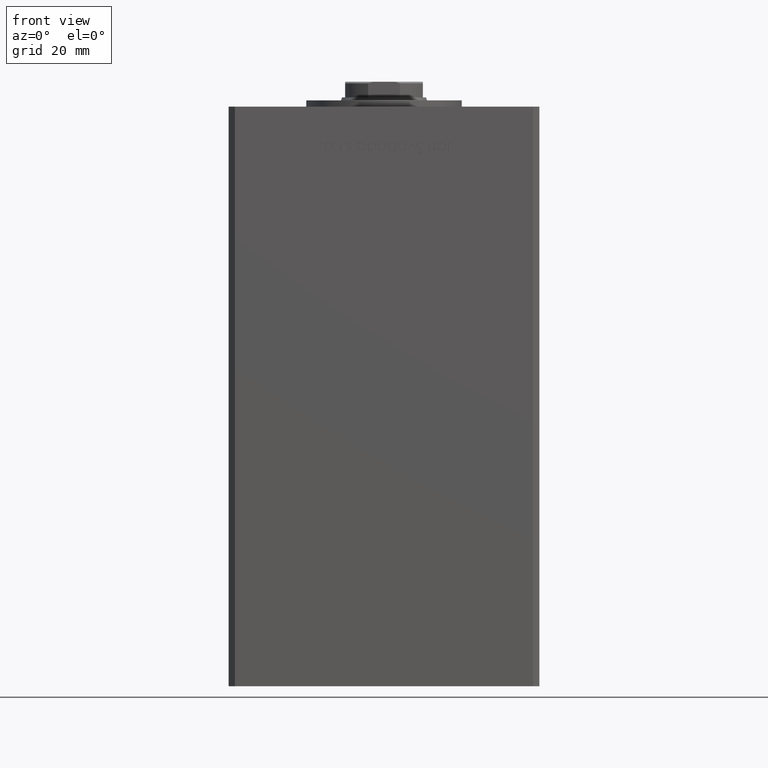
[diagram: clean part render]
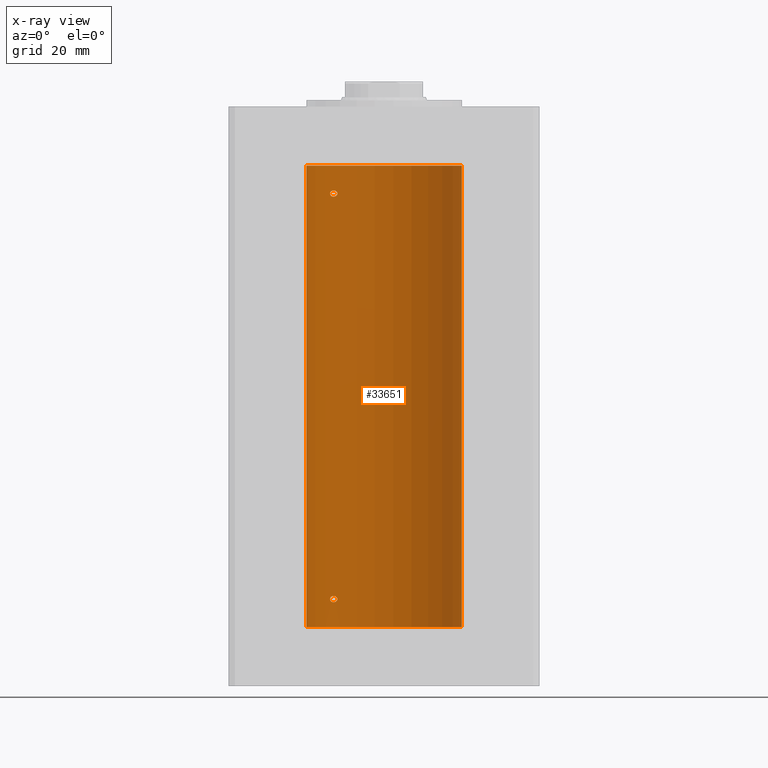
[diagram: x-ray — body ghosted, one internal face saturated and labeled with its STEP entity id]
A machine part, front view, then the same camera in x-ray: the body is ghosted and one INTERNAL B-rep face — a face not visible from any outside direction — is saturated and labeled: STEP entity #33651.
In plain terms, the highlighted cylindrical surface (partial cylindrical patch) has radius 25 mm, axis along (-0, -0, -1).
Its self-contained STEP definition (entity closure, byte-faithful):
#184 = ORIENTED_EDGE ( 'NONE', *, *, #7863, .T. ) ;
#331 = CARTESIAN_POINT ( 'NONE',  ( -15.06763582406798818, 19.94912143246363811, 139.8250699387717475 ) ) ;
#586 = CARTESIAN_POINT ( 'NONE',  ( -16.72476285461317502, 18.58415905903083498, 140.4449447607956927 ) ) ;
#1312 = VECTOR ( 'NONE', #37553, 1000.000000000000000 ) ;
#1379 = CARTESIAN_POINT ( 'NONE',  ( 25.00000000000000000, 3.061616997868383043E-15, 148.5000000000000000 ) ) ;
#1762 = CARTESIAN_POINT ( 'NONE',  ( -15.58164749401199956, 19.55082150006405328, 138.6566780726851675 ) ) ;
#1823 = AXIS2_PLACEMENT_3D ( 'NONE', #33311, #40907, #45357 ) ;
#2150 = CIRCLE ( 'NONE', #3848, 25.00000000000000000 ) ;
#2289 = CARTESIAN_POINT ( 'NONE',  ( -15.23538646979298505, 19.82157806413532697, 138.9119998952827757 ) ) ;
#2467 = DIRECTION ( 'NONE',  ( 1.000000000000000000, 0.000000000000000000, 0.000000000000000000 ) ) ;
#2996 = CARTESIAN_POINT ( 'NONE',  ( -15.95796937689561013, 19.24499537862566712, 9.975773099652194276 ) ) ;
#3251 = CARTESIAN_POINT ( 'NONE',  ( -17.30163983552689899, 18.04615713653367592, 9.336007472727789747 ) ) ;
#3848 = AXIS2_PLACEMENT_3D ( 'NONE', #6407, #30821, #2467 ) ;
#4541 = CARTESIAN_POINT ( 'NONE',  ( -17.19010376497220705, 18.15221652163111088, 140.0356701235680248 ) ) ;
#4683 = CARTESIAN_POINT ( 'NONE',  ( -17.05249165747618534, 18.28208333366438509, 138.7922192200364009 ) ) ;
#4734 = EDGE_CURVE ( 'NONE', #51564, #17553, #44001, .T. ) ;
#4802 = CARTESIAN_POINT ( 'NONE',  ( -15.58230678163759642, 19.55030131031898577, 140.3437394867029582 ) ) ;
#5056 = CARTESIAN_POINT ( 'NONE',  ( -17.05007833789892047, 18.28384926940287869, 140.2013739990121621 ) ) ;
#5779 = EDGE_LOOP ( 'NONE', ( #51059, #23667 ) ) ;
#5952 = CARTESIAN_POINT ( 'NONE',  ( -17.34935157289747210, 18.00000000000001066, 8.828998360425808656 ) ) ;
#6154 = CARTESIAN_POINT ( 'NONE',  ( -15.10490800566735814, 19.92096305044240978, 9.396293174044259899 ) ) ;
#6407 = CARTESIAN_POINT ( 'NONE',  ( 0.000000000000000000, 0.000000000000000000, 0.000000000000000000 ) ) ;
#6710 = CARTESIAN_POINT ( 'NONE',  ( 25.00000000000000000, 3.061616997868383043E-15, 148.5000000000000000 ) ) ;
#6739 = CARTESIAN_POINT ( 'NONE',  ( -15.23538646979297440, 19.82157806413534118, 8.411999895282772144 ) ) ;
#6931 = B_SPLINE_CURVE_WITH_KNOTS ( 'NONE', 3,
 ( #48508, #12544, #28564, #40629, #4683, #44563, #22486, #25647, #13312, #13827, #9894, #33281, #1762, #21960, #2289, #14348, #41661, #34055, #34318, #38516 ),
 .UNSPECIFIED., .F., .F.,
 ( 4, 2, 2, 2, 2, 2, 2, 2, 2, 4 ),
 ( 2.254873622441466949E-16, 0.0005040871078735091300, 0.001008174215746792746, 0.001512261323620076470, 0.002016348431493359978, 0.002520435539366643485, 0.003024522647239927427, 0.003528609755113210501, 0.003780653309049884347, 0.004032696862986557759 ),
 .UNSPECIFIED. ) ;
#6934 = CARTESIAN_POINT ( 'NONE',  ( -16.46913072925703148, 18.81168496547890712, 10.00577755881140618 ) ) ;
#6998 = CARTESIAN_POINT ( 'NONE',  ( -16.34293146994553680, 18.91921593628409681, 7.997342590672627871 ) ) ;
#7190 = CARTESIAN_POINT ( 'NONE',  ( -17.05007833789893112, 18.28384926940286093, 9.701373999012139038 ) ) ;
#7348 = B_SPLINE_CURVE_WITH_KNOTS ( 'NONE', 3,
 ( #47849, #28176, #8221, #331, #21309, #48883, #40749, #4802, #17117, #33143, #13425, #45710, #586, #24985, #5056, #17630, #4541, #41004, #32890, #44682 ),
 .UNSPECIFIED., .F., .F.,
 ( 4, 2, 2, 2, 2, 2, 2, 2, 2, 4 ),
 ( 0.004032696862986557759, 0.004284699222246954667, 0.004536701581507351574, 0.005040706300028082940, 0.005544711018548810835, 0.006048715737069539598, 0.007056725174110996257, 0.007308727533371349797, 0.007560729892631701601, 0.008064734611152412150 ),
 .UNSPECIFIED. ) ;
#7507 = DIRECTION ( 'NONE',  ( -1.000000000000000000, 0.000000000000000000, 0.000000000000000000 ) ) ;
#7863 = EDGE_CURVE ( 'NONE', #32360, #40607, #49869, .T. ) ;
#8221 = CARTESIAN_POINT ( 'NONE',  ( -15.01476641895662567, 19.98894406010707314, 139.6687945634013204 ) ) ;
#8855 = EDGE_CURVE ( 'NONE', #17553, #40607, #2150, .T. ) ;
#9253 = DIRECTION ( 'NONE',  ( -0.000000000000000000, -0.000000000000000000, -1.000000000000000000 ) ) ;
#9297 = CARTESIAN_POINT ( 'NONE',  ( 25.00000000000000000, 3.061616997868383043E-15, 0.000000000000000000 ) ) ;
#9859 = ORIENTED_EDGE ( 'NONE', *, *, #12526, .T. ) ;
#9894 = CARTESIAN_POINT ( 'NONE',  ( -15.95808436639360117, 19.24489366819300784, 138.5242608788495602 ) ) ;
#10330 = CARTESIAN_POINT ( 'NONE',  ( -15.34624284195506583, 19.73614442075939479, 9.687618531851304837 ) ) ;
#10487 = CARTESIAN_POINT ( 'NONE',  ( -25.00000000000000000, 0.000000000000000000, 148.5000000000000000 ) ) ;
#10920 = CARTESIAN_POINT ( 'NONE',  ( -14.99999999999999112, 20.00000000000001066, 9.000000000000000000 ) ) ;
#12526 = EDGE_CURVE ( 'NONE', #51564, #32360, #17739, .T. ) ;
#12544 = CARTESIAN_POINT ( 'NONE',  ( -17.34935157289747210, 18.00000000000002132, 139.3289983604257998 ) ) ;
#13312 = CARTESIAN_POINT ( 'NONE',  ( -16.34293146994552259, 18.91921593628409681, 138.4973425906726163 ) ) ;
#13425 = CARTESIAN_POINT ( 'NONE',  ( -16.08745393861402917, 19.13692152169251059, 140.4965015099868992 ) ) ;
#13612 = ORIENTED_EDGE ( 'NONE', *, *, #17622, .F. ) ;
#13827 = CARTESIAN_POINT ( 'NONE',  ( -16.08757264251632080, 19.13682698743034649, 138.5034427658481775 ) ) ;
#14006 = CARTESIAN_POINT ( 'NONE',  ( -15.23594348686699895, 19.82115246225716376, 9.588721932685826843 ) ) ;
#14348 = CARTESIAN_POINT ( 'NONE',  ( -15.10490010356605595, 19.92096840819819903, 139.1037666713224610 ) ) ;
#14726 = EDGE_CURVE ( 'NONE', #27398, #47281, #6931, .T. ) ;
#15115 = CARTESIAN_POINT ( 'NONE',  ( -15.70664578139651191, 19.45064696206092947, 8.100579599492109040 ) ) ;
#15518 = B_SPLINE_CURVE_WITH_KNOTS ( 'NONE', 3,
 ( #41907, #5952, #21945, #26672, #34301, #42168, #42684, #51069, #6998, #42945, #34826, #15115, #19058, #26932, #6739, #46878, #18274, #22725, #50548, #10920 ),
 .UNSPECIFIED., .F., .F.,
 ( 4, 2, 2, 2, 2, 2, 2, 2, 2, 4 ),
 ( 1.994630283518400476E-16, 0.0005040871078734959028, 0.001008174215746792312, 0.001512261323620088830, 0.002016348431493385131, 0.002520435539366681216, 0.003024522647239978167, 0.003528609755113274252, 0.003780653309049923812, 0.004032696862986573372 ),
 .UNSPECIFIED. ) ;
#17117 = CARTESIAN_POINT ( 'NONE',  ( -15.70535969280552280, 19.45169171760802485, 140.3989607721124457 ) ) ;
#17399 = EDGE_CURVE ( 'NONE', #26518, #38541, #15518, .T. ) ;
#17553 = VERTEX_POINT ( 'NONE', #9297 ) ;
#17622 = EDGE_CURVE ( 'NONE', #38541, #26518, #39230, .T. ) ;
#17630 = CARTESIAN_POINT ( 'NONE',  ( -17.14593038898727428, 18.19399314418736324, 140.0959448831964949 ) ) ;
#17739 = CIRCLE ( 'NONE', #1823, 25.00000000000000000 ) ;
#17865 = EDGE_CURVE ( 'NONE', #47281, #27398, #7348, .T. ) ;
#18274 = CARTESIAN_POINT ( 'NONE',  ( -15.06722189748647622, 19.94943357555938945, 8.675980324878882044 ) ) ;
#19058 = CARTESIAN_POINT ( 'NONE',  ( -15.58164749401199956, 19.55082150006405683, 8.156678072685190628 ) ) ;
#19319 = CARTESIAN_POINT ( 'NONE',  ( 0.000000000000000000, 0.000000000000000000, 148.5000000000000000 ) ) ;
#19569 = FACE_OUTER_BOUND ( 'NONE', #42739, .T. ) ;
#21309 = CARTESIAN_POINT ( 'NONE',  ( -15.10490800566735103, 19.92096305044241689, 139.8962931740442173 ) ) ;
#21945 = CARTESIAN_POINT ( 'NONE',  ( -17.30269557861142360, 18.04515136187502122, 8.666042081755742643 ) ) ;
#21960 = CARTESIAN_POINT ( 'NONE',  ( -15.34666241858318259, 19.73581294411415854, 138.8121224605375517 ) ) ;
#22139 = CARTESIAN_POINT ( 'NONE',  ( -15.58230678163760530, 19.55030131031898577, 9.843739486702938635 ) ) ;
#22486 = CARTESIAN_POINT ( 'NONE',  ( -16.71492528194901794, 18.59135325782701642, 138.5801415583420351 ) ) ;
#22725 = CARTESIAN_POINT ( 'NONE',  ( -15.01482636753732791, 19.98889854010116096, 8.831202661007704791 ) ) ;
#23186 = CARTESIAN_POINT ( 'NONE',  ( -17.14593038898729560, 18.19399314418734548, 9.595944883196500186 ) ) ;
#23667 = ORIENTED_EDGE ( 'NONE', *, *, #17865, .F. ) ;
#24985 = CARTESIAN_POINT ( 'NONE',  ( -16.99843849356149050, 18.33190197607055794, 140.2468335145756839 ) ) ;
#25305 = CARTESIAN_POINT ( 'NONE',  ( -14.99999999999999112, 20.00000000000000711, 139.4999999999999716 ) ) ;
#25647 = CARTESIAN_POINT ( 'NONE',  ( -16.46844752485324648, 18.81003400474354947, 138.5115443190389044 ) ) ;
#26082 = CARTESIAN_POINT ( 'NONE',  ( -17.34935157289806895, 17.99999999999981526, 9.000000000000094147 ) ) ;
#26349 = CARTESIAN_POINT ( 'NONE',  ( -16.08745393861402917, 19.13692152169249994, 9.996501509986932987 ) ) ;
#26518 = VERTEX_POINT ( 'NONE', #37659 ) ;
#26672 = CARTESIAN_POINT ( 'NONE',  ( -17.15234217094407043, 18.18812579706695232, 8.396573043774958833 ) ) ;
#26703 = CARTESIAN_POINT ( 'NONE',  ( -25.00000000000000000, 0.000000000000000000, 148.5000000000000000 ) ) ;
#26932 = CARTESIAN_POINT ( 'NONE',  ( -15.34666241858317903, 19.73581294411416209, 8.312122460537615609 ) ) ;
#27398 = VERTEX_POINT ( 'NONE', #31053 ) ;
#28176 = CARTESIAN_POINT ( 'NONE',  ( -15.00000000000018474, 20.00000000000002487, 139.5840388036241393 ) ) ;
#28564 = CARTESIAN_POINT ( 'NONE',  ( -17.30269557861141294, 18.04515136187502478, 139.1660420817557053 ) ) ;
#30821 = DIRECTION ( 'NONE',  ( -0.000000000000000000, 0.000000000000000000, 1.000000000000000000 ) ) ;
#31053 = CARTESIAN_POINT ( 'NONE',  ( -17.34935157289806185, 17.99999999999981526, 139.5000000000000853 ) ) ;
#31667 = DIRECTION ( 'NONE',  ( -0.000000000000000000, -0.000000000000000000, -1.000000000000000000 ) ) ;
#32360 = VERTEX_POINT ( 'NONE', #26703 ) ;
#32890 = CARTESIAN_POINT ( 'NONE',  ( -17.34935157289746854, 18.00000000000001421, 139.6709736906063029 ) ) ;
#33143 = CARTESIAN_POINT ( 'NONE',  ( -15.95796937689560480, 19.24499537862567422, 140.4757730996521730 ) ) ;
#33281 = CARTESIAN_POINT ( 'NONE',  ( -15.70664578139651546, 19.45064696206092947, 138.6005795994921073 ) ) ;
#33311 = CARTESIAN_POINT ( 'NONE',  ( 0.000000000000000000, 0.000000000000000000, 148.5000000000000000 ) ) ;
#33651 = ADVANCED_FACE ( 'NONE', ( #19569, #51583, #36371 ), #43465, .F. ) ;
#33974 = CARTESIAN_POINT ( 'NONE',  ( -16.72476285461318568, 18.58415905903082788, 9.944944760795701555 ) ) ;
#34055 = CARTESIAN_POINT ( 'NONE',  ( -15.01482636753733146, 19.98889854010115741, 139.3312026610076941 ) ) ;
#34301 = CARTESIAN_POINT ( 'NONE',  ( -17.05249165747619955, 18.28208333366437088, 8.292219220036422200 ) ) ;
#34318 = CARTESIAN_POINT ( 'NONE',  ( -15.00000000000018119, 20.00000000000001421, 139.4159474586024032 ) ) ;
#34759 = CARTESIAN_POINT ( 'NONE',  ( -14.99999999999999112, 20.00000000000001066, 9.000000000000000000 ) ) ;
#34826 = CARTESIAN_POINT ( 'NONE',  ( -15.95808436639360295, 19.24489366819300429, 8.024260878849535317 ) ) ;
#36371 = FACE_BOUND ( 'NONE', #5779, .T. ) ;
#37553 = DIRECTION ( 'NONE',  ( -0.000000000000000000, -0.000000000000000000, -1.000000000000000000 ) ) ;
#37659 = CARTESIAN_POINT ( 'NONE',  ( -17.34935157289806895, 17.99999999999981526, 9.000000000000094147 ) ) ;
#38172 = CARTESIAN_POINT ( 'NONE',  ( -15.01476641895661679, 19.98894406010708380, 9.168794563401341691 ) ) ;
#38516 = CARTESIAN_POINT ( 'NONE',  ( -14.99999999999999112, 20.00000000000000711, 139.4999999999999716 ) ) ;
#38541 = VERTEX_POINT ( 'NONE', #46870 ) ;
#38692 = CARTESIAN_POINT ( 'NONE',  ( -15.00000000000018829, 20.00000000000001776, 9.084038803624167713 ) ) ;
#38803 = EDGE_LOOP ( 'NONE', ( #42772, #13612 ) ) ;
#39230 = B_SPLINE_CURVE_WITH_KNOTS ( 'NONE', 3,
 ( #34759, #38692, #38172, #49969, #6154, #14006, #10330, #22139, #46555, #2996, #26349, #6934, #33974, #50485, #7190, #23186, #43144, #3251, #46815, #26082 ),
 .UNSPECIFIED., .F., .F.,
 ( 4, 2, 2, 2, 2, 2, 2, 2, 2, 4 ),
 ( 0.004032696862986573372, 0.004284699222246939054, 0.004536701581507305604, 0.005040706300028038704, 0.005544711018548771804, 0.006048715737069505771, 0.007056725174110978910, 0.007308727533371345460, 0.007560729892631712010, 0.008064734611152450314 ),
 .UNSPECIFIED. ) ;
#40607 = VERTEX_POINT ( 'NONE', #50970 ) ;
#40629 = CARTESIAN_POINT ( 'NONE',  ( -17.15234217094406333, 18.18812579706696653, 138.8965730437749926 ) ) ;
#40749 = CARTESIAN_POINT ( 'NONE',  ( -15.34624284195505162, 19.73614442075940190, 140.1876185318512853 ) ) ;
#40900 = ORIENTED_EDGE ( 'NONE', *, *, #8855, .F. ) ;
#40907 = DIRECTION ( 'NONE',  ( -0.000000000000000000, 0.000000000000000000, 1.000000000000000000 ) ) ;
#41004 = CARTESIAN_POINT ( 'NONE',  ( -17.30163983552688833, 18.04615713653367948, 139.8360074727277720 ) ) ;
#41661 = CARTESIAN_POINT ( 'NONE',  ( -15.06722189748648866, 19.94943357555938590, 139.1759803248788785 ) ) ;
#41907 = CARTESIAN_POINT ( 'NONE',  ( -17.34935157289806895, 17.99999999999981526, 9.000000000000094147 ) ) ;
#42168 = CARTESIAN_POINT ( 'NONE',  ( -16.83415218046512152, 18.48332662461726272, 8.134317266281161807 ) ) ;
#42684 = CARTESIAN_POINT ( 'NONE',  ( -16.71492528194902860, 18.59135325782701287, 8.080141558342052832 ) ) ;
#42739 = EDGE_LOOP ( 'NONE', ( #49646, #9859, #184, #40900 ) ) ;
#42772 = ORIENTED_EDGE ( 'NONE', *, *, #17399, .F. ) ;
#42945 = CARTESIAN_POINT ( 'NONE',  ( -16.08757264251632790, 19.13682698743033939, 8.003442765848200580 ) ) ;
#43144 = CARTESIAN_POINT ( 'NONE',  ( -17.19010376497221060, 18.15221652163110377, 9.535670123568005252 ) ) ;
#43465 = CYLINDRICAL_SURFACE ( 'NONE', #50777, 25.00000000000000000 ) ;
#44001 = LINE ( 'NONE', #1379, #51488 ) ;
#44563 = CARTESIAN_POINT ( 'NONE',  ( -16.83415218046510731, 18.48332662461726983, 138.6343172662811298 ) ) ;
#44682 = CARTESIAN_POINT ( 'NONE',  ( -17.34935157289806185, 17.99999999999981526, 139.5000000000000853 ) ) ;
#45357 = DIRECTION ( 'NONE',  ( 1.000000000000000000, 0.000000000000000000, 0.000000000000000000 ) ) ;
#45710 = CARTESIAN_POINT ( 'NONE',  ( -16.46913072925702792, 18.81168496547891777, 140.5057775588114168 ) ) ;
#46555 = CARTESIAN_POINT ( 'NONE',  ( -15.70535969280553346, 19.45169171760802840, 9.898960772112497253 ) ) ;
#46815 = CARTESIAN_POINT ( 'NONE',  ( -17.34935157289747210, 18.00000000000001421, 9.170973690606336604 ) ) ;
#46870 = CARTESIAN_POINT ( 'NONE',  ( -14.99999999999999112, 20.00000000000001066, 9.000000000000000000 ) ) ;
#46878 = CARTESIAN_POINT ( 'NONE',  ( -15.10490010356604174, 19.92096840819820258, 8.603766671322523152 ) ) ;
#47281 = VERTEX_POINT ( 'NONE', #25305 ) ;
#47849 = CARTESIAN_POINT ( 'NONE',  ( -14.99999999999999112, 20.00000000000000711, 139.4999999999999716 ) ) ;
#48508 = CARTESIAN_POINT ( 'NONE',  ( -17.34935157289806185, 17.99999999999981526, 139.5000000000000853 ) ) ;
#48883 = CARTESIAN_POINT ( 'NONE',  ( -15.23594348686699185, 19.82115246225716021, 140.0887219326858144 ) ) ;
#49646 = ORIENTED_EDGE ( 'NONE', *, *, #4734, .F. ) ;
#49869 = LINE ( 'NONE', #10487, #1312 ) ;
#49969 = CARTESIAN_POINT ( 'NONE',  ( -15.06763582406798463, 19.94912143246364522, 9.325069938771754607 ) ) ;
#50485 = CARTESIAN_POINT ( 'NONE',  ( -16.99843849356148695, 18.33190197607054372, 9.746833514575657276 ) ) ;
#50548 = CARTESIAN_POINT ( 'NONE',  ( -15.00000000000019007, 20.00000000000002842, 8.915947458602436981 ) ) ;
#50777 = AXIS2_PLACEMENT_3D ( 'NONE', #19319, #31667, #7507 ) ;
#50970 = CARTESIAN_POINT ( 'NONE',  ( -25.00000000000000000, 0.000000000000000000, 0.000000000000000000 ) ) ;
#51059 = ORIENTED_EDGE ( 'NONE', *, *, #14726, .F. ) ;
#51069 = CARTESIAN_POINT ( 'NONE',  ( -16.46844752485326069, 18.81003400474354237, 8.011544319038929274 ) ) ;
#51488 = VECTOR ( 'NONE', #9253, 1000.000000000000000 ) ;
#51564 = VERTEX_POINT ( 'NONE', #6710 ) ;
#51583 = FACE_BOUND ( 'NONE', #38803, .T. ) ;